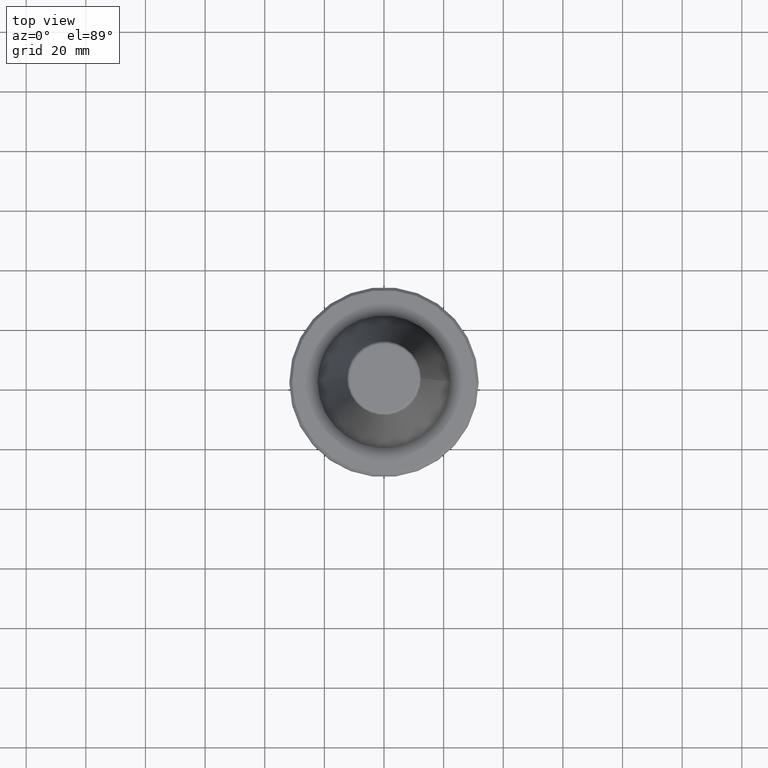
[diagram: clean part render]
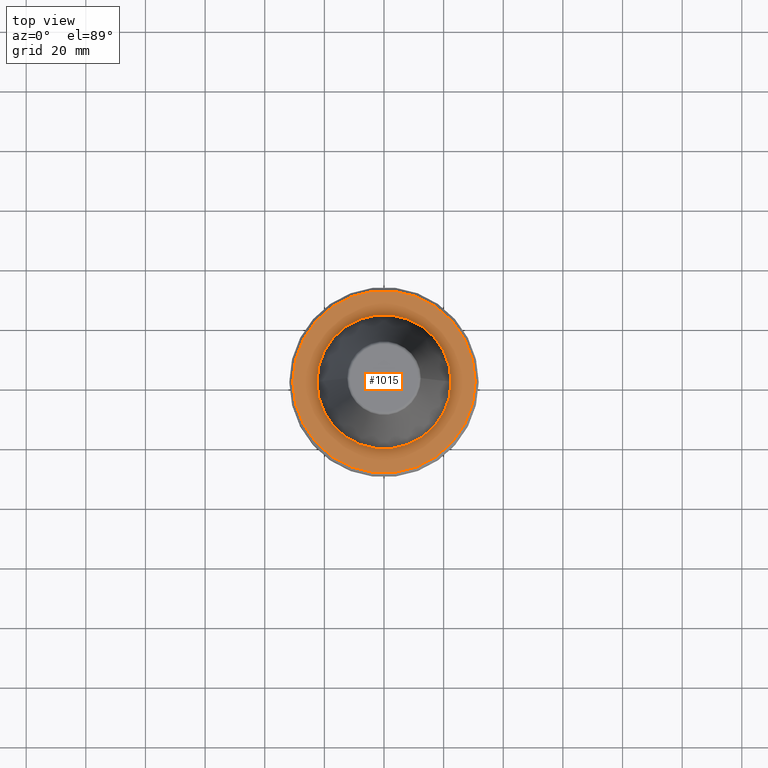
[diagram: same view with one face highlighted and labeled with its STEP entity id]
A machine part, top view. The second image highlights one B-rep face of the part: STEP entity #1015.
In plain terms, the highlighted planar face has unit normal (0, -0, 1).
Its self-contained STEP definition (entity closure, byte-faithful):
#6 = VERTEX_POINT ( 'NONE', #120 ) ;
#52 = ORIENTED_EDGE ( 'NONE', *, *, #426, .F. ) ;
#63 = CARTESIAN_POINT ( 'NONE',  ( 30.58431457505076200, 0.0000000000000000000, -3.199999999999994400 ) ) ;
#68 = CARTESIAN_POINT ( 'NONE',  ( 0.0000000000000000000, 0.0000000000000000000, -3.199999999999994400 ) ) ;
#70 = FACE_OUTER_BOUND ( 'NONE', #415, .T. ) ;
#86 = DIRECTION ( 'NONE',  ( -0.0000000000000000000, -0.0000000000000000000, 1.000000000000000000 ) ) ;
#89 = VERTEX_POINT ( 'NONE', #776 ) ;
#120 = CARTESIAN_POINT ( 'NONE',  ( -30.58431457505076200, 3.762817415969875600E-015, -3.199999999999994400 ) ) ;
#127 = DIRECTION ( 'NONE',  ( -0.0000000000000000000, -0.0000000000000000000, 1.000000000000000000 ) ) ;
#132 = ORIENTED_EDGE ( 'NONE', *, *, #287, .T. ) ;
#155 = ORIENTED_EDGE ( 'NONE', *, *, #1083, .F. ) ;
#183 = DIRECTION ( 'NONE',  ( 1.000000000000000000, 0.0000000000000000000, 0.0000000000000000000 ) ) ;
#193 = CARTESIAN_POINT ( 'NONE',  ( 0.0000000000000000000, 0.0000000000000000000, -3.199999999999994400 ) ) ;
#216 = EDGE_LOOP ( 'NONE', ( #155, #52 ) ) ;
#223 = CIRCLE ( 'NONE', #973, 30.58431457505076200 ) ;
#272 = CARTESIAN_POINT ( 'NONE',  ( 0.0000000000000000000, 0.0000000000000000000, -3.200000000000000200 ) ) ;
#287 = EDGE_CURVE ( 'NONE', #6, #1036, #831, .T. ) ;
#298 = DIRECTION ( 'NONE',  ( 1.000000000000000000, 0.0000000000000000000, 0.0000000000000000000 ) ) ;
#345 = DIRECTION ( 'NONE',  ( 1.000000000000000000, 0.0000000000000000000, 0.0000000000000000000 ) ) ;
#381 = CARTESIAN_POINT ( 'NONE',  ( 22.50000000000000000, 0.0000000000000000000, -3.199999999999996600 ) ) ;
#415 = EDGE_LOOP ( 'NONE', ( #694, #132 ) ) ;
#426 = EDGE_CURVE ( 'NONE', #89, #877, #840, .T. ) ;
#485 = PLANE ( 'NONE',  #697 ) ;
#489 = DIRECTION ( 'NONE',  ( 0.0000000000000000000, -0.0000000000000000000, 1.000000000000000000 ) ) ;
#694 = ORIENTED_EDGE ( 'NONE', *, *, #735, .T. ) ;
#697 = AXIS2_PLACEMENT_3D ( 'NONE', #272, #489, #1131 ) ;
#735 = EDGE_CURVE ( 'NONE', #1036, #6, #223, .T. ) ;
#765 = AXIS2_PLACEMENT_3D ( 'NONE', #68, #769, #183 ) ;
#769 = DIRECTION ( 'NONE',  ( -0.0000000000000000000, -0.0000000000000000000, 1.000000000000000000 ) ) ;
#776 = CARTESIAN_POINT ( 'NONE',  ( -22.50000000000000000, 2.755455298081544800E-015, -3.199999999999996600 ) ) ;
#808 = DIRECTION ( 'NONE',  ( -0.0000000000000000000, -0.0000000000000000000, 1.000000000000000000 ) ) ;
#827 = FACE_BOUND ( 'NONE', #216, .T. ) ;
#829 = AXIS2_PLACEMENT_3D ( 'NONE', #909, #127, #345 ) ;
#831 = CIRCLE ( 'NONE', #829, 30.58431457505076200 ) ;
#840 = CIRCLE ( 'NONE', #1084, 22.50000000000000000 ) ;
#877 = VERTEX_POINT ( 'NONE', #381 ) ;
#892 = CARTESIAN_POINT ( 'NONE',  ( 0.0000000000000000000, 0.0000000000000000000, -3.199999999999994400 ) ) ;
#901 = DIRECTION ( 'NONE',  ( 1.000000000000000000, 0.0000000000000000000, 0.0000000000000000000 ) ) ;
#909 = CARTESIAN_POINT ( 'NONE',  ( 0.0000000000000000000, 0.0000000000000000000, -3.199999999999994400 ) ) ;
#973 = AXIS2_PLACEMENT_3D ( 'NONE', #193, #86, #298 ) ;
#1015 = ADVANCED_FACE ( 'NONE', ( #70, #827 ), #485, .T. ) ;
#1036 = VERTEX_POINT ( 'NONE', #63 ) ;
#1083 = EDGE_CURVE ( 'NONE', #877, #89, #1251, .T. ) ;
#1084 = AXIS2_PLACEMENT_3D ( 'NONE', #892, #808, #901 ) ;
#1131 = DIRECTION ( 'NONE',  ( 1.000000000000000000, 0.0000000000000000000, 0.0000000000000000000 ) ) ;
#1251 = CIRCLE ( 'NONE', #765, 22.50000000000000000 ) ;